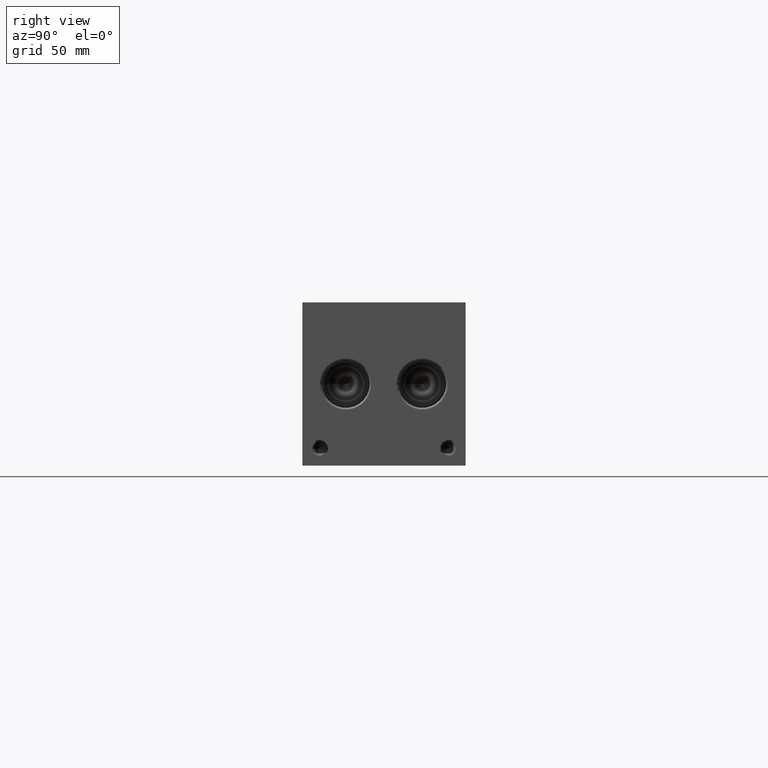
[diagram: clean part render]
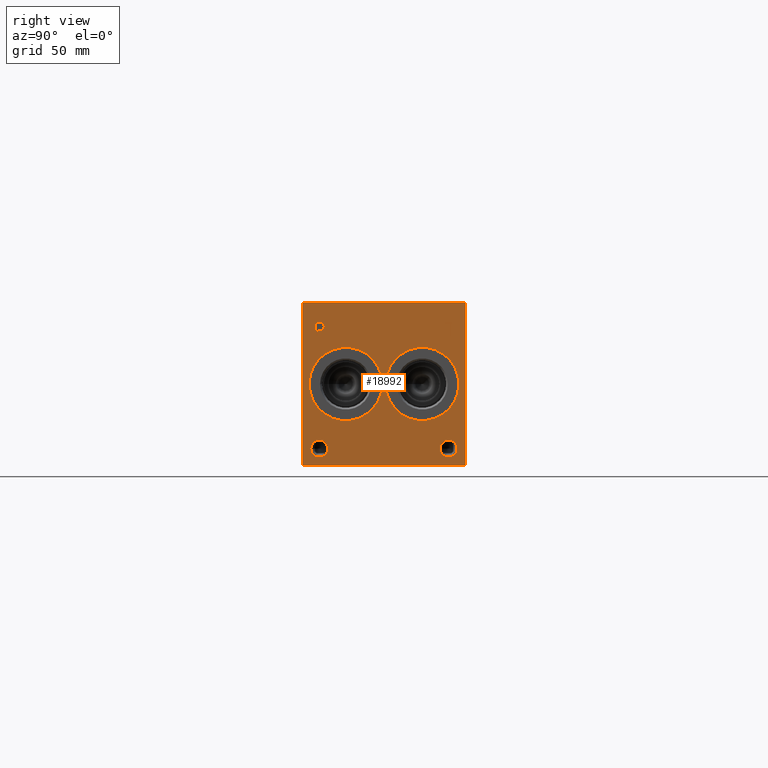
[diagram: same view with one face highlighted and labeled with its STEP entity id]
A machine part, right view. The second image highlights one B-rep face of the part: STEP entity #18992.
In plain terms, the highlighted planar face has unit normal (1, 0, 0).
Its self-contained STEP definition (entity closure, byte-faithful):
#343=CIRCLE('',#19823,17.0688);
#344=CIRCLE('',#19824,17.0688);
#345=CIRCLE('',#19825,17.0688);
#346=CIRCLE('',#19826,17.0688);
#347=CIRCLE('',#19827,3.9624);
#348=CIRCLE('',#19828,3.9624);
#349=CIRCLE('',#19829,3.9624);
#350=CIRCLE('',#19830,3.9624);
#1032=FACE_BOUND('',#3565,.T.);
#1033=FACE_BOUND('',#3566,.T.);
#1034=FACE_BOUND('',#3567,.T.);
#1035=FACE_BOUND('',#3568,.T.);
#1036=FACE_BOUND('',#3569,.T.);
#1037=FACE_BOUND('',#3570,.T.);
#1607=B_SPLINE_CURVE_WITH_KNOTS('',2,(#31556,#31557,#31558,#31559),
 .UNSPECIFIED.,.F.,.F.,(3,1,3),(0.,1.,2.),.UNSPECIFIED.);
#1609=B_SPLINE_CURVE_WITH_KNOTS('',2,(#31577,#31578,#31579,#31580),
 .UNSPECIFIED.,.F.,.F.,(3,1,3),(0.,1.,2.),.UNSPECIFIED.);
#1611=B_SPLINE_CURVE_WITH_KNOTS('',2,(#31626,#31627,#31628,#31629),
 .UNSPECIFIED.,.F.,.F.,(3,1,3),(0.,1.,2.),.UNSPECIFIED.);
#1613=B_SPLINE_CURVE_WITH_KNOTS('',2,(#31644,#31645,#31646,#31647),
 .UNSPECIFIED.,.F.,.F.,(3,1,3),(0.,1.,2.),.UNSPECIFIED.);
#2475=FACE_OUTER_BOUND('',#3564,.T.);
#3564=EDGE_LOOP('',(#15188,#15189,#15190,#15191));
#3565=EDGE_LOOP('',(#15192,#15193));
#3566=EDGE_LOOP('',(#15194,#15195));
#3567=EDGE_LOOP('',(#15196,#15197));
#3568=EDGE_LOOP('',(#15198,#15199));
#3569=EDGE_LOOP('',(#15200,#15201,#15202,#15203,#15204,#15205,#15206,#15207));
#3570=EDGE_LOOP('',(#15208,#15209,#15210,#15211,#15212,#15213,#15214,#15215,
#15216));
#4359=LINE('',#27732,#5950);
#5285=LINE('',#31589,#6876);
#5288=LINE('',#31595,#6879);
#5291=LINE('',#31601,#6882);
#5294=LINE('',#31607,#6885);
#5297=LINE('',#31613,#6888);
#5301=LINE('',#31655,#6892);
#5302=LINE('',#31657,#6893);
#5303=LINE('',#31658,#6894);
#5304=LINE('',#31677,#6895);
#5305=LINE('',#31679,#6896);
#5306=LINE('',#31681,#6897);
#5307=LINE('',#31683,#6898);
#5308=LINE('',#31685,#6899);
#5309=LINE('',#31687,#6900);
#5310=LINE('',#31689,#6901);
#5311=LINE('',#31690,#6902);
#5950=VECTOR('',#21215,10.);
#6876=VECTOR('',#22831,10.);
#6879=VECTOR('',#22836,10.);
#6882=VECTOR('',#22841,10.);
#6885=VECTOR('',#22846,10.);
#6888=VECTOR('',#22851,10.);
#6892=VECTOR('',#22859,10.);
#6893=VECTOR('',#22860,10.);
#6894=VECTOR('',#22861,10.);
#6895=VECTOR('',#22878,10.);
#6896=VECTOR('',#22879,10.);
#6897=VECTOR('',#22880,10.);
#6898=VECTOR('',#22881,10.);
#6899=VECTOR('',#22882,10.);
#6900=VECTOR('',#22883,10.);
#6901=VECTOR('',#22884,10.);
#6902=VECTOR('',#22885,10.);
#7606=VERTEX_POINT('',#27729);
#7607=VERTEX_POINT('',#27731);
#8395=VERTEX_POINT('',#31554);
#8396=VERTEX_POINT('',#31555);
#8399=VERTEX_POINT('',#31576);
#8401=VERTEX_POINT('',#31588);
#8403=VERTEX_POINT('',#31594);
#8405=VERTEX_POINT('',#31600);
#8407=VERTEX_POINT('',#31606);
#8409=VERTEX_POINT('',#31612);
#8411=VERTEX_POINT('',#31625);
#8413=VERTEX_POINT('',#31654);
#8414=VERTEX_POINT('',#31656);
#8415=VERTEX_POINT('',#31659);
#8416=VERTEX_POINT('',#31660);
#8417=VERTEX_POINT('',#31663);
#8418=VERTEX_POINT('',#31664);
#8419=VERTEX_POINT('',#31667);
#8420=VERTEX_POINT('',#31668);
#8421=VERTEX_POINT('',#31671);
#8422=VERTEX_POINT('',#31672);
#8423=VERTEX_POINT('',#31675);
#8424=VERTEX_POINT('',#31676);
#8425=VERTEX_POINT('',#31678);
#8426=VERTEX_POINT('',#31680);
#8427=VERTEX_POINT('',#31682);
#8428=VERTEX_POINT('',#31684);
#8429=VERTEX_POINT('',#31686);
#8430=VERTEX_POINT('',#31688);
#9657=EDGE_CURVE('',#7606,#7607,#4359,.T.);
#10826=EDGE_CURVE('',#8395,#8396,#1607,.T.);
#10830=EDGE_CURVE('',#8399,#8395,#1609,.T.);
#10833=EDGE_CURVE('',#8401,#8399,#5285,.T.);
#10836=EDGE_CURVE('',#8403,#8401,#5288,.T.);
#10839=EDGE_CURVE('',#8405,#8403,#5291,.T.);
#10842=EDGE_CURVE('',#8407,#8405,#5294,.T.);
#10845=EDGE_CURVE('',#8409,#8407,#5297,.T.);
#10848=EDGE_CURVE('',#8411,#8409,#1611,.T.);
#10851=EDGE_CURVE('',#8396,#8411,#1613,.T.);
#10853=EDGE_CURVE('',#7606,#8413,#5301,.T.);
#10854=EDGE_CURVE('',#8413,#8414,#5302,.T.);
#10855=EDGE_CURVE('',#7607,#8414,#5303,.T.);
#10856=EDGE_CURVE('',#8415,#8416,#343,.T.);
#10857=EDGE_CURVE('',#8416,#8415,#344,.T.);
#10858=EDGE_CURVE('',#8417,#8418,#345,.T.);
#10859=EDGE_CURVE('',#8418,#8417,#346,.T.);
#10860=EDGE_CURVE('',#8419,#8420,#347,.T.);
#10861=EDGE_CURVE('',#8420,#8419,#348,.T.);
#10862=EDGE_CURVE('',#8421,#8422,#349,.T.);
#10863=EDGE_CURVE('',#8422,#8421,#350,.T.);
#10864=EDGE_CURVE('',#8423,#8424,#5304,.T.);
#10865=EDGE_CURVE('',#8424,#8425,#5305,.T.);
#10866=EDGE_CURVE('',#8425,#8426,#5306,.T.);
#10867=EDGE_CURVE('',#8426,#8427,#5307,.T.);
#10868=EDGE_CURVE('',#8427,#8428,#5308,.T.);
#10869=EDGE_CURVE('',#8428,#8429,#5309,.T.);
#10870=EDGE_CURVE('',#8429,#8430,#5310,.T.);
#10871=EDGE_CURVE('',#8430,#8423,#5311,.T.);
#15188=ORIENTED_EDGE('',*,*,#10853,.T.);
#15189=ORIENTED_EDGE('',*,*,#10854,.T.);
#15190=ORIENTED_EDGE('',*,*,#10855,.F.);
#15191=ORIENTED_EDGE('',*,*,#9657,.F.);
#15192=ORIENTED_EDGE('',*,*,#10856,.T.);
#15193=ORIENTED_EDGE('',*,*,#10857,.T.);
#15194=ORIENTED_EDGE('',*,*,#10858,.T.);
#15195=ORIENTED_EDGE('',*,*,#10859,.T.);
#15196=ORIENTED_EDGE('',*,*,#10860,.T.);
#15197=ORIENTED_EDGE('',*,*,#10861,.T.);
#15198=ORIENTED_EDGE('',*,*,#10862,.T.);
#15199=ORIENTED_EDGE('',*,*,#10863,.T.);
#15200=ORIENTED_EDGE('',*,*,#10864,.T.);
#15201=ORIENTED_EDGE('',*,*,#10865,.T.);
#15202=ORIENTED_EDGE('',*,*,#10866,.T.);
#15203=ORIENTED_EDGE('',*,*,#10867,.T.);
#15204=ORIENTED_EDGE('',*,*,#10868,.T.);
#15205=ORIENTED_EDGE('',*,*,#10869,.T.);
#15206=ORIENTED_EDGE('',*,*,#10870,.T.);
#15207=ORIENTED_EDGE('',*,*,#10871,.T.);
#15208=ORIENTED_EDGE('',*,*,#10826,.T.);
#15209=ORIENTED_EDGE('',*,*,#10851,.T.);
#15210=ORIENTED_EDGE('',*,*,#10848,.T.);
#15211=ORIENTED_EDGE('',*,*,#10845,.T.);
#15212=ORIENTED_EDGE('',*,*,#10842,.T.);
#15213=ORIENTED_EDGE('',*,*,#10839,.T.);
#15214=ORIENTED_EDGE('',*,*,#10836,.T.);
#15215=ORIENTED_EDGE('',*,*,#10833,.T.);
#15216=ORIENTED_EDGE('',*,*,#10830,.T.);
#17667=PLANE('',#19822);
#18992=ADVANCED_FACE('',(#2475,#1032,#1033,#1034,#1035,#1036,#1037),#17667,
 .T.);
#19822=AXIS2_PLACEMENT_3D('',#31653,#22857,#22858);
#19823=AXIS2_PLACEMENT_3D('',#31661,#22862,#22863);
#19824=AXIS2_PLACEMENT_3D('',#31662,#22864,#22865);
#19825=AXIS2_PLACEMENT_3D('',#31665,#22866,#22867);
#19826=AXIS2_PLACEMENT_3D('',#31666,#22868,#22869);
#19827=AXIS2_PLACEMENT_3D('',#31669,#22870,#22871);
#19828=AXIS2_PLACEMENT_3D('',#31670,#22872,#22873);
#19829=AXIS2_PLACEMENT_3D('',#31673,#22874,#22875);
#19830=AXIS2_PLACEMENT_3D('',#31674,#22876,#22877);
#21215=DIRECTION('',(0.,0.,1.));
#22831=DIRECTION('',(0.,1.,0.));
#22836=DIRECTION('',(0.,0.,1.));
#22841=DIRECTION('',(0.,-1.,0.));
#22846=DIRECTION('',(0.,0.,-1.));
#22851=DIRECTION('',(0.,-1.,0.));
#22857=DIRECTION('center_axis',(1.,0.,0.));
#22858=DIRECTION('ref_axis',(0.,1.,0.));
#22859=DIRECTION('',(0.,1.,0.));
#22860=DIRECTION('',(0.,0.,1.));
#22861=DIRECTION('',(0.,1.,0.));
#22862=DIRECTION('center_axis',(-1.,0.,0.));
#22863=DIRECTION('ref_axis',(0.,1.,0.));
#22864=DIRECTION('center_axis',(-1.,0.,0.));
#22865=DIRECTION('ref_axis',(0.,1.,0.));
#22866=DIRECTION('center_axis',(-1.,0.,0.));
#22867=DIRECTION('ref_axis',(0.,1.,0.));
#22868=DIRECTION('center_axis',(-1.,0.,0.));
#22869=DIRECTION('ref_axis',(0.,1.,0.));
#22870=DIRECTION('center_axis',(-1.,0.,0.));
#22871=DIRECTION('ref_axis',(0.,1.,0.));
#22872=DIRECTION('center_axis',(-1.,0.,0.));
#22873=DIRECTION('ref_axis',(0.,1.,0.));
#22874=DIRECTION('center_axis',(-1.,0.,0.));
#22875=DIRECTION('ref_axis',(0.,1.,0.));
#22876=DIRECTION('center_axis',(-1.,0.,0.));
#22877=DIRECTION('ref_axis',(0.,1.,0.));
#22878=DIRECTION('',(0.,-1.,0.));
#22879=DIRECTION('',(0.,0.,1.));
#22880=DIRECTION('',(0.,-1.,0.));
#22881=DIRECTION('',(0.,0.,1.));
#22882=DIRECTION('',(0.,1.,0.));
#22883=DIRECTION('',(0.,0.,-1.));
#22884=DIRECTION('',(0.,-1.,0.));
#22885=DIRECTION('',(0.,0.,-1.));
#27729=CARTESIAN_POINT('',(323.85,0.,0.));
#27731=CARTESIAN_POINT('',(323.85,0.,76.2));
#27732=CARTESIAN_POINT('',(323.85,0.,0.));
#31554=CARTESIAN_POINT('',(323.85,9.41236720235939,66.4057681439707));
#31555=CARTESIAN_POINT('',(323.85,10.168809654532,64.887737372604));
#31556=CARTESIAN_POINT('Ctrl Pts',(323.85,9.41236720235939,66.4057681439707));
#31557=CARTESIAN_POINT('Ctrl Pts',(323.85,9.76743202684857,66.1639123939564));
#31558=CARTESIAN_POINT('Ctrl Pts',(323.85,10.168809654532,65.4177616758269));
#31559=CARTESIAN_POINT('Ctrl Pts',(323.85,10.168809654532,64.887737372604));
#31576=CARTESIAN_POINT('',(323.85,7.7502521543883,66.8019999046326));
#31577=CARTESIAN_POINT('Ctrl Pts',(323.85,7.7502521543883,66.8019999046326));
#31578=CARTESIAN_POINT('Ctrl Pts',(323.85,8.31629752676236,66.8019999046326));
#31579=CARTESIAN_POINT('Ctrl Pts',(323.85,9.10876104808603,66.6167486918556));
#31580=CARTESIAN_POINT('Ctrl Pts',(323.85,9.41236720235939,66.4057681439707));
#31588=CARTESIAN_POINT('',(323.85,6.15503337769779,66.8019999046326));
#31589=CARTESIAN_POINT('',(323.85,3.07751668884889,66.8019999046326));
#31594=CARTESIAN_POINT('',(323.85,6.15503337769779,60.452));
#31595=CARTESIAN_POINT('',(323.85,6.15503337769779,30.226));
#31600=CARTESIAN_POINT('',(323.85,6.99895556923729,60.452));
#31601=CARTESIAN_POINT('',(323.85,3.49947778461864,60.452));
#31606=CARTESIAN_POINT('',(323.85,6.99895556923729,62.8190988299279));
#31607=CARTESIAN_POINT('',(323.85,6.99895556923729,31.4095494149639));
#31612=CARTESIAN_POINT('',(323.85,7.71423108523723,62.8190988299279));
#31613=CARTESIAN_POINT('',(323.85,3.85711554261861,62.8190988299279));
#31625=CARTESIAN_POINT('',(323.85,9.6130560162011,63.4777698086904));
#31626=CARTESIAN_POINT('Ctrl Pts',(323.85,9.6130560162011,63.4777698086904));
#31627=CARTESIAN_POINT('Ctrl Pts',(323.85,9.28372052681983,63.1535801863307));
#31628=CARTESIAN_POINT('Ctrl Pts',(323.85,8.39348553208609,62.8190988299279));
#31629=CARTESIAN_POINT('Ctrl Pts',(323.85,7.71423108523723,62.8190988299279));
#31644=CARTESIAN_POINT('Ctrl Pts',(323.85,10.168809654532,64.887737372604));
#31645=CARTESIAN_POINT('Ctrl Pts',(323.85,10.168809654532,64.4760680108774));
#31646=CARTESIAN_POINT('Ctrl Pts',(323.85,9.8754952343018,63.7350631597695));
#31647=CARTESIAN_POINT('Ctrl Pts',(323.85,9.6130560162011,63.4777698086904));
#31653=CARTESIAN_POINT('Origin',(323.85,0.,0.));
#31654=CARTESIAN_POINT('',(323.85,76.2,0.));
#31655=CARTESIAN_POINT('',(323.85,0.,0.));
#31656=CARTESIAN_POINT('',(323.85,76.2,76.2));
#31657=CARTESIAN_POINT('',(323.85,76.2,0.));
#31658=CARTESIAN_POINT('',(323.85,0.,76.2));
#31659=CARTESIAN_POINT('',(323.85,37.3126,38.1));
#31660=CARTESIAN_POINT('',(323.85,3.175,38.1));
#31661=CARTESIAN_POINT('Origin',(323.85,20.2438,38.1));
#31662=CARTESIAN_POINT('Origin',(323.85,20.2438,38.1));
#31663=CARTESIAN_POINT('',(323.85,73.025,38.1));
#31664=CARTESIAN_POINT('',(323.85,38.8874,38.1));
#31665=CARTESIAN_POINT('Origin',(323.85,55.9562,38.1));
#31666=CARTESIAN_POINT('Origin',(323.85,55.9562,38.1));
#31667=CARTESIAN_POINT('',(323.85,11.8872,7.9248));
#31668=CARTESIAN_POINT('',(323.85,3.9624,7.9248));
#31669=CARTESIAN_POINT('Origin',(323.85,7.9248,7.9248));
#31670=CARTESIAN_POINT('Origin',(323.85,7.9248,7.9248));
#31671=CARTESIAN_POINT('',(323.85,72.2376,7.9248));
#31672=CARTESIAN_POINT('',(323.85,64.3128,7.9248));
#31673=CARTESIAN_POINT('Origin',(323.85,68.2752,7.9248));
#31674=CARTESIAN_POINT('Origin',(323.85,68.2752,7.9248));
#31675=CARTESIAN_POINT('',(323.85,69.593365271453,60.452));
#31676=CARTESIAN_POINT('',(323.85,68.7494430799135,60.452));
#31677=CARTESIAN_POINT('',(323.85,34.7966826357265,60.452));
#31678=CARTESIAN_POINT('',(323.85,68.7494430799135,66.0507033194816));
#31679=CARTESIAN_POINT('',(323.85,68.7494430799135,30.226));
#31680=CARTESIAN_POINT('',(323.85,66.6190541329784,66.0507033194816));
#31681=CARTESIAN_POINT('',(323.85,34.3747215399568,66.0507033194816));
#31682=CARTESIAN_POINT('',(323.85,66.6190541329784,66.8019999046326));
#31683=CARTESIAN_POINT('',(323.85,66.6190541329784,33.0253516597408));
#31684=CARTESIAN_POINT('',(323.85,71.7237542183881,66.8019999046326));
#31685=CARTESIAN_POINT('',(323.85,33.3095270664892,66.8019999046326));
#31686=CARTESIAN_POINT('',(323.85,71.7237542183881,66.0507033194816));
#31687=CARTESIAN_POINT('',(323.85,71.7237542183881,33.4009999523163));
#31688=CARTESIAN_POINT('',(323.85,69.593365271453,66.0507033194816));
#31689=CARTESIAN_POINT('',(323.85,35.861877109194,66.0507033194816));
#31690=CARTESIAN_POINT('',(323.85,69.593365271453,33.0253516597408));